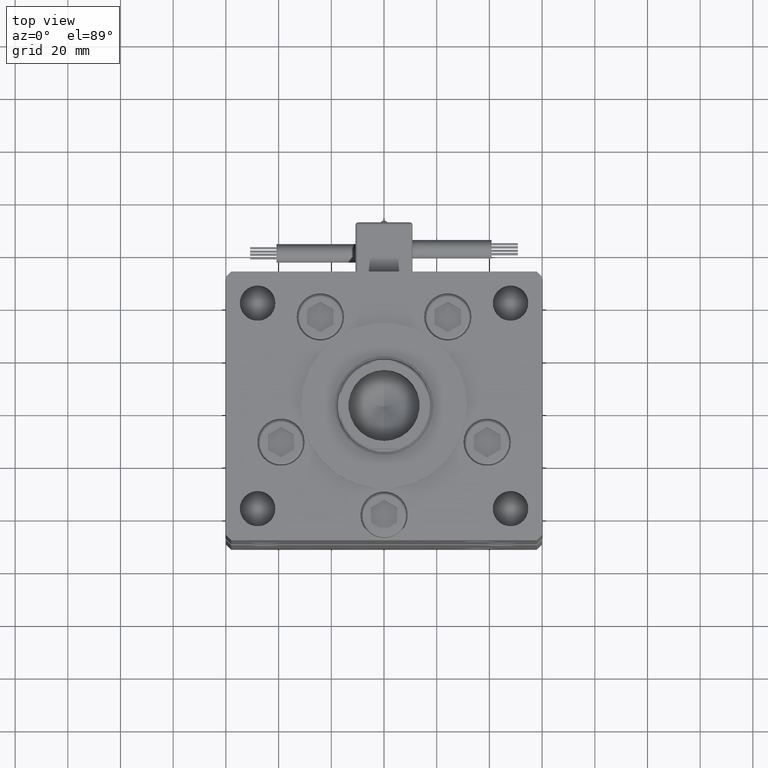
[diagram: clean part render]
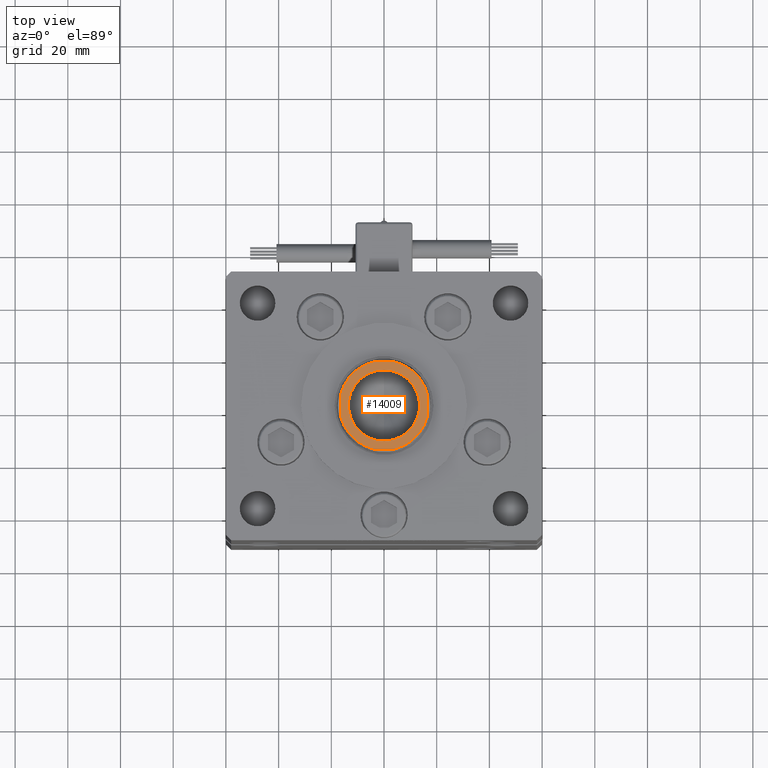
[diagram: same view with one face highlighted and labeled with its STEP entity id]
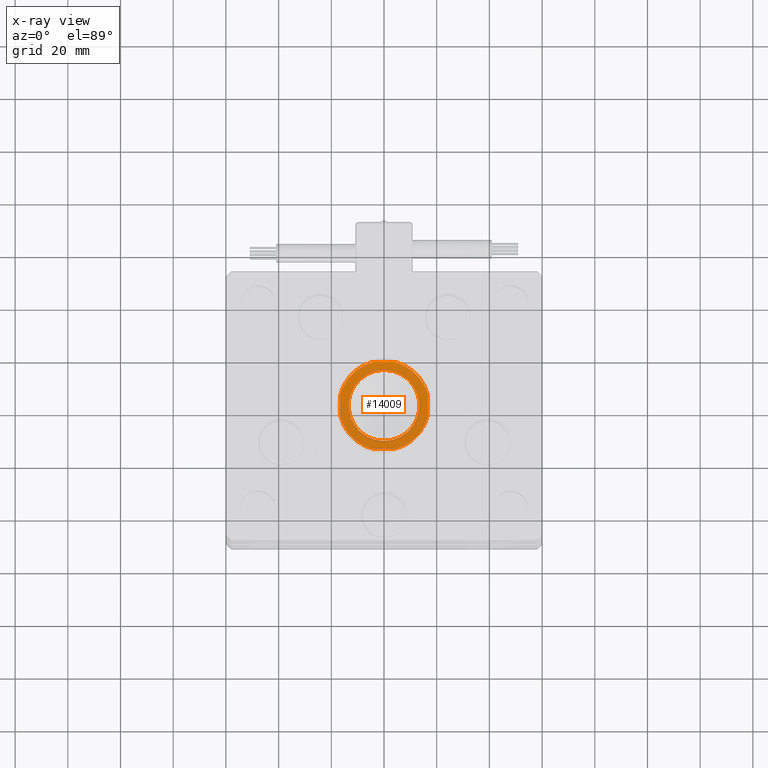
[diagram: x-ray of the same camera — body ghosted, the highlighted face saturated]
A machine part, top view. The second image highlights one B-rep face of the part: STEP entity #14009.
The next image is the same camera in x-ray: the body ghosted, the highlighted face saturated — about 0% of this face is hidden behind the body in this view.
In plain terms, the highlighted planar face has unit normal (-0, 0, -1).
Its self-contained STEP definition (entity closure, byte-faithful):
#184 = VERTEX_POINT ( 'NONE', #333 ) ;
#314 = VERTEX_POINT ( 'NONE', #42656 ) ;
#333 = CARTESIAN_POINT ( 'NONE',  ( -1.648689559598516988E-15, 4.092676385936150574, -16.50000000000000000 ) ) ;
#957 = LINE ( 'NONE', #9992, #55087 ) ;
#1125 = CARTESIAN_POINT ( 'NONE',  ( -1.040949779275249943E-15, 0.000000000000000000, -13.49999999999999822 ) ) ;
#1330 = VERTEX_POINT ( 'NONE', #1125 ) ;
#1436 = VERTEX_POINT ( 'NONE', #10984 ) ;
#1973 = CARTESIAN_POINT ( 'NONE',  ( 6.646843084602470887E-15, -16.50000000000000000, -5.830951894845306960 ) ) ;
#2047 = VERTEX_POINT ( 'NONE', #27374 ) ;
#2585 = ORIENTED_EDGE ( 'NONE', *, *, #35786, .F. ) ;
#3829 = CARTESIAN_POINT ( 'NONE',  ( 6.646843084602470887E-15, -16.50000000000000000, -4.092676385936165673 ) ) ;
#5085 = DIRECTION ( 'NONE',  ( 1.000000000000000000, -0.000000000000000000, -0.000000000000000000 ) ) ;
#5449 = DIRECTION ( 'NONE',  ( 0.000000000000000000, 0.000000000000000000, -1.000000000000000000 ) ) ;
#6116 = LINE ( 'NONE', #23336, #48420 ) ;
#6200 = LINE ( 'NONE', #1973, #22217 ) ;
#8690 = DIRECTION ( 'NONE',  ( 1.000000000000000000, -9.892608450469889463E-18, -0.000000000000000000 ) ) ;
#9022 = FACE_BOUND ( 'NONE', #19516, .T. ) ;
#9306 = EDGE_CURVE ( 'NONE', #1436, #35775, #957, .T. ) ;
#9992 = CARTESIAN_POINT ( 'NONE',  ( -6.646843084602470887E-15, 16.50000000000000000, 5.830951894845304295 ) ) ;
#10171 = DIRECTION ( 'NONE',  ( 0.000000000000000000, 0.000000000000000000, -1.000000000000000000 ) ) ;
#10844 = EDGE_CURVE ( 'NONE', #184, #35775, #30822, .T. ) ;
#10984 = CARTESIAN_POINT ( 'NONE',  ( -6.646843084602470887E-15, 16.50000000000000000, 4.092676385936165673 ) ) ;
#11967 = DIRECTION ( 'NONE',  ( -4.028389748243922078E-16, 1.000000000000000000, 0.000000000000000000 ) ) ;
#12185 = ORIENTED_EDGE ( 'NONE', *, *, #33075, .F. ) ;
#13460 = CARTESIAN_POINT ( 'NONE',  ( -6.376513835579207168E-16, -1.734723475976807094E-15, 0.000000000000000000 ) ) ;
#13849 = VERTEX_POINT ( 'NONE', #14426 ) ;
#14009 = ADVANCED_FACE ( 'NONE', ( #9022, #43136 ), #39481, .F. ) ;
#14426 = CARTESIAN_POINT ( 'NONE',  ( -1.040949779275249943E-15, 1.653273178848926867E-15, 13.50000000000000000 ) ) ;
#14939 = DIRECTION ( 'NONE',  ( 0.000000000000000000, 0.000000000000000000, 1.000000000000000000 ) ) ;
#15822 = AXIS2_PLACEMENT_3D ( 'NONE', #19009, #43823, #35094 ) ;
#16397 = AXIS2_PLACEMENT_3D ( 'NONE', #51345, #28834, #37864 ) ;
#17620 = ORIENTED_EDGE ( 'NONE', *, *, #42844, .T. ) ;
#18434 = CARTESIAN_POINT ( 'NONE',  ( -1.040949779275249943E-15, 0.000000000000000000, 0.000000000000000000 ) ) ;
#19009 = CARTESIAN_POINT ( 'NONE',  ( -6.376513835579207168E-16, -1.734723475976807094E-15, 0.000000000000000000 ) ) ;
#19516 = EDGE_LOOP ( 'NONE', ( #42482, #29710 ) ) ;
#20978 = ORIENTED_EDGE ( 'NONE', *, *, #10844, .T. ) ;
#22217 = VECTOR ( 'NONE', #14939, 1000.000000000000000 ) ;
#23336 = CARTESIAN_POINT ( 'NONE',  ( -2.348934683569829922E-15, 5.830951894845306072, -16.50000000000000000 ) ) ;
#26002 = AXIS2_PLACEMENT_3D ( 'NONE', #44592, #48808, #47676 ) ;
#26173 = EDGE_CURVE ( 'NONE', #314, #44387, #49872, .T. ) ;
#26308 = ORIENTED_EDGE ( 'NONE', *, *, #37131, .F. ) ;
#27374 = CARTESIAN_POINT ( 'NONE',  ( -1.648689559598523101E-15, 4.092676385936164785, 16.50000000000000000 ) ) ;
#28118 = DIRECTION ( 'NONE',  ( 4.028389748243922078E-16, -1.000000000000000000, 0.000000000000000000 ) ) ;
#28834 = DIRECTION ( 'NONE',  ( 1.000000000000000000, -9.892608450469889463E-18, -0.000000000000000000 ) ) ;
#29593 = VERTEX_POINT ( 'NONE', #39830 ) ;
#29710 = ORIENTED_EDGE ( 'NONE', *, *, #55374, .F. ) ;
#30822 = CIRCLE ( 'NONE', #16397, 16.99999999999998579 ) ;
#31430 = DIRECTION ( 'NONE',  ( 0.000000000000000000, 0.000000000000000000, -1.000000000000000000 ) ) ;
#31609 = EDGE_CURVE ( 'NONE', #1436, #2047, #32945, .T. ) ;
#32329 = CIRCLE ( 'NONE', #26002, 16.99999999999998579 ) ;
#32945 = CIRCLE ( 'NONE', #15822, 16.99999999999998579 ) ;
#33075 = EDGE_CURVE ( 'NONE', #35349, #44387, #6200, .T. ) ;
#33648 = AXIS2_PLACEMENT_3D ( 'NONE', #34979, #51592, #34701 ) ;
#34701 = DIRECTION ( 'NONE',  ( -9.892608450469889463E-18, -1.000000000000000000, 0.000000000000000000 ) ) ;
#34979 = CARTESIAN_POINT ( 'NONE',  ( -4.645307356746975888E-16, 17.50000000000000000, 0.000000000000000000 ) ) ;
#35094 = DIRECTION ( 'NONE',  ( -9.892608450469889463E-18, -1.000000000000000000, 1.776356839400250465E-15 ) ) ;
#35349 = VERTEX_POINT ( 'NONE', #3829 ) ;
#35775 = VERTEX_POINT ( 'NONE', #40538 ) ;
#35786 = EDGE_CURVE ( 'NONE', #184, #29593, #6116, .T. ) ;
#37131 = EDGE_CURVE ( 'NONE', #314, #2047, #49748, .T. ) ;
#37361 = CARTESIAN_POINT ( 'NONE',  ( 2.348934683569831500E-15, -5.830951894845309624, 16.50000000000000000 ) ) ;
#37645 = EDGE_CURVE ( 'NONE', #1330, #13849, #40441, .T. ) ;
#37864 = DIRECTION ( 'NONE',  ( -9.892608450469889463E-18, -1.000000000000000000, 8.881784197001250351E-16 ) ) ;
#39481 = PLANE ( 'NONE',  #33648 ) ;
#39830 = CARTESIAN_POINT ( 'NONE',  ( 1.648689559598524679E-15, -4.092676385936168337, -16.50000000000000000 ) ) ;
#40441 = CIRCLE ( 'NONE', #42196, 13.49999999999999822 ) ;
#40538 = CARTESIAN_POINT ( 'NONE',  ( -6.646843084602470887E-15, 16.50000000000000000, -4.092676385936152350 ) ) ;
#40556 = CIRCLE ( 'NONE', #45052, 13.49999999999999822 ) ;
#41852 = ORIENTED_EDGE ( 'NONE', *, *, #9306, .F. ) ;
#42196 = AXIS2_PLACEMENT_3D ( 'NONE', #43729, #5085, #10171 ) ;
#42482 = ORIENTED_EDGE ( 'NONE', *, *, #37645, .F. ) ;
#42656 = CARTESIAN_POINT ( 'NONE',  ( 1.648689559598553473E-15, -4.092676385936240280, 16.50000000000000000 ) ) ;
#42660 = ORIENTED_EDGE ( 'NONE', *, *, #31609, .T. ) ;
#42844 = EDGE_CURVE ( 'NONE', #35349, #29593, #32329, .T. ) ;
#43136 = FACE_OUTER_BOUND ( 'NONE', #54653, .T. ) ;
#43729 = CARTESIAN_POINT ( 'NONE',  ( -1.040949779275249943E-15, 0.000000000000000000, 0.000000000000000000 ) ) ;
#43823 = DIRECTION ( 'NONE',  ( 1.000000000000000000, -9.892608450469889463E-18, -0.000000000000000000 ) ) ;
#44387 = VERTEX_POINT ( 'NONE', #51850 ) ;
#44592 = CARTESIAN_POINT ( 'NONE',  ( -6.376513835579207168E-16, -1.734723475976807094E-15, 0.000000000000000000 ) ) ;
#45052 = AXIS2_PLACEMENT_3D ( 'NONE', #18434, #52534, #5449 ) ;
#45075 = ORIENTED_EDGE ( 'NONE', *, *, #26173, .T. ) ;
#46304 = AXIS2_PLACEMENT_3D ( 'NONE', #13460, #8690, #51536 ) ;
#47676 = DIRECTION ( 'NONE',  ( -9.892608450469889463E-18, -1.000000000000000000, 0.000000000000000000 ) ) ;
#48420 = VECTOR ( 'NONE', #28118, 1000.000000000000000 ) ;
#48808 = DIRECTION ( 'NONE',  ( 1.000000000000000000, -9.892608450469889463E-18, -0.000000000000000000 ) ) ;
#49748 = LINE ( 'NONE', #37361, #54780 ) ;
#49872 = CIRCLE ( 'NONE', #46304, 17.00000000000000711 ) ;
#51345 = CARTESIAN_POINT ( 'NONE',  ( -6.376513835579207168E-16, -1.734723475976807094E-15, 0.000000000000000000 ) ) ;
#51536 = DIRECTION ( 'NONE',  ( -9.892608450469887922E-18, -1.000000000000000000, -8.881784197001250351E-16 ) ) ;
#51592 = DIRECTION ( 'NONE',  ( -1.000000000000000000, 9.892608450469889463E-18, 0.000000000000000000 ) ) ;
#51850 = CARTESIAN_POINT ( 'NONE',  ( 6.646843084602470887E-15, -16.50000000000000000, 4.092676385936238503 ) ) ;
#52534 = DIRECTION ( 'NONE',  ( 1.000000000000000000, -0.000000000000000000, -0.000000000000000000 ) ) ;
#54653 = EDGE_LOOP ( 'NONE', ( #41852, #42660, #26308, #45075, #12185, #17620, #2585, #20978 ) ) ;
#54780 = VECTOR ( 'NONE', #11967, 1000.000000000000000 ) ;
#55087 = VECTOR ( 'NONE', #31430, 1000.000000000000000 ) ;
#55374 = EDGE_CURVE ( 'NONE', #13849, #1330, #40556, .T. ) ;